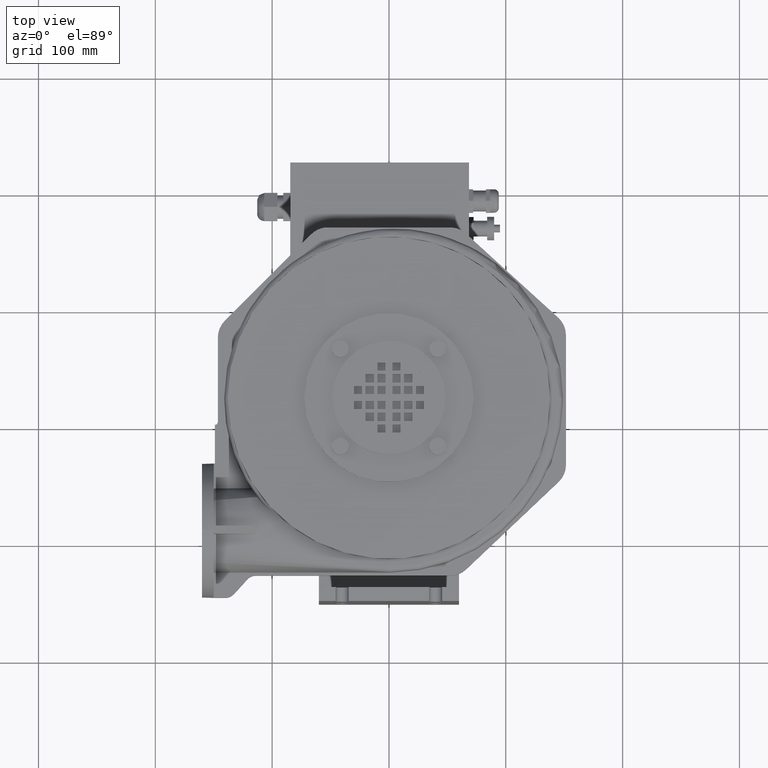
[diagram: clean part render]
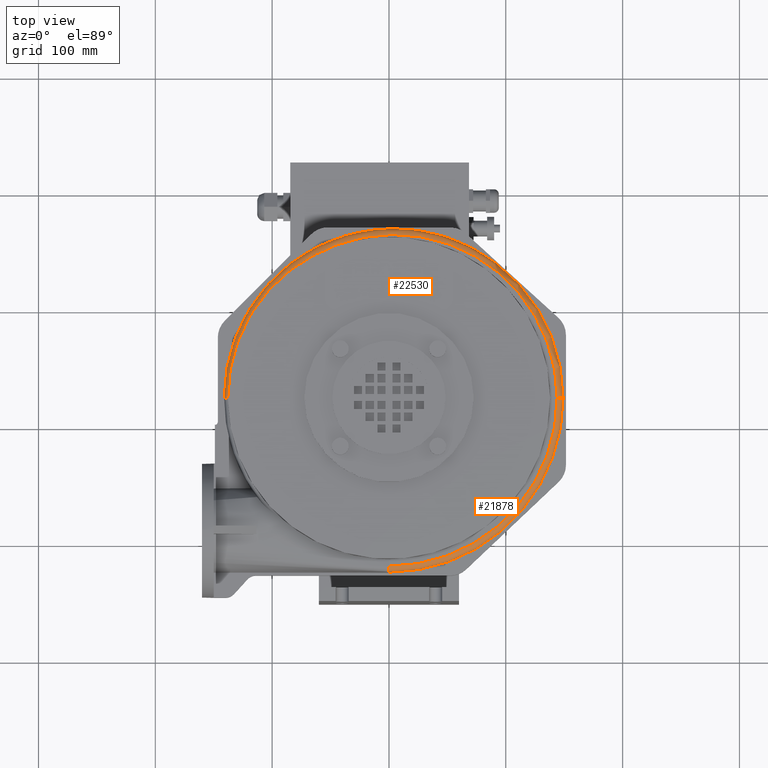
[diagram: same view with one multi-face feature highlighted, each face labeled with its STEP entity id]
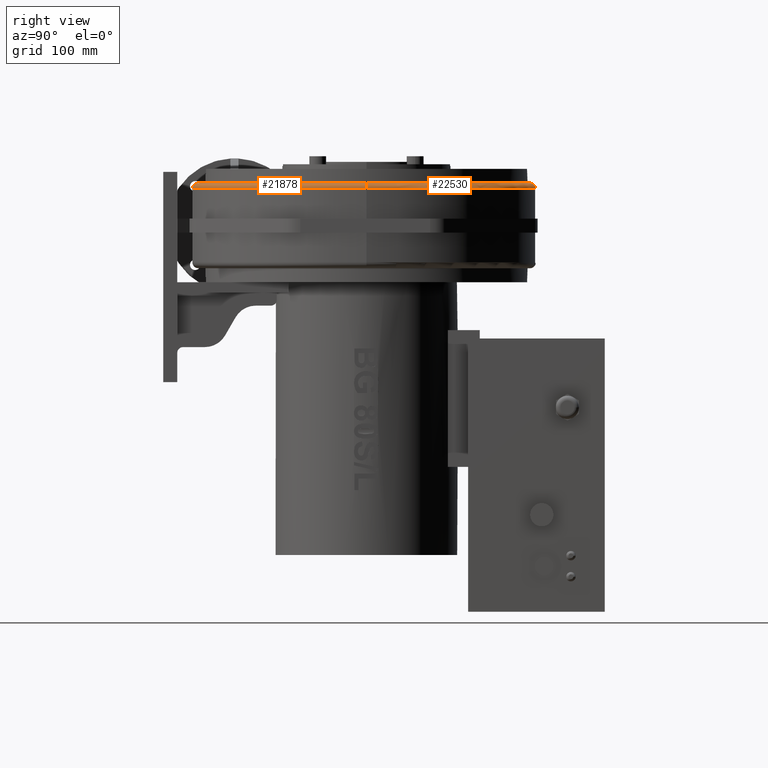
[diagram: same view with one multi-face feature highlighted, each face labeled with its STEP entity id]
A machine part, top view. The highlighted faces form ONE feature: a constant-radius fillet chain: 2 tangent blend faces with common blend radius 5 mm. The faces share edges in the B-rep.
A second angle (right view) of the same feature is appended — it is thin or edge-on in the first view.
Their STEP definitions:
[1] entity #21878 (Torus):
#21835=CARTESIAN_POINT('',(-6.065097E-015,120.50000000000006,75.5));
#21836=DIRECTION('',(1.224647E-016,1.513340E-030,-1.0));
#21837=DIRECTION('',(-1.0,0.0,0.0));
#21838=AXIS2_PLACEMENT_3D('',#21835,#21836,#21837);
#21839=TOROIDAL_SURFACE('',#21838,144.0,5.0);
#21840=CARTESIAN_POINT('',(-2.666143E-014,-23.499999999999943,80.5));
#21841=VERTEX_POINT('',#21840);
#21842=CARTESIAN_POINT('',(-2.674300E-014,-28.499999999999943,75.5));
#21843=VERTEX_POINT('',#21842);
#21844=CARTESIAN_POINT('',(-2.604911E-014,-23.499999999999943,75.5));
#21845=DIRECTION('',(1.0,0.0,0.0));
#21846=DIRECTION('',(0.0,-1.0,0.0));
#21847=AXIS2_PLACEMENT_3D('',#21844,#21845,#21846);
#21848=CIRCLE('',#21847,5.0);
#21849=EDGE_CURVE('',#21841,#21843,#21848,.T.);
#21850=ORIENTED_EDGE('',*,*,#21849,.T.);
#21851=CARTESIAN_POINT('',(149.0000000000002,120.50000000000004,75.500000000000014));
#21852=VERTEX_POINT('',#21851);
#21853=CARTESIAN_POINT('',(-6.065097E-015,120.50000000000006,75.5));
#21854=DIRECTION('',(-6.123234E-017,6.123234E-017,1.0));
#21855=DIRECTION('',(0.707106781186547,-0.707106781186548,8.659561E-017));
#21856=AXIS2_PLACEMENT_3D('',#21853,#21854,#21855);
#21857=CIRCLE('',#21856,149.0);
#21858=EDGE_CURVE('',#21843,#21852,#21857,.T.);
#21859=ORIENTED_EDGE('',*,*,#21858,.T.);
#21860=CARTESIAN_POINT('',(144.0,120.50000000000004,80.5));
#21861=VERTEX_POINT('',#21860);
#21862=CARTESIAN_POINT('',(144.0,120.50000000000004,75.500000000000014));
#21863=DIRECTION('',(0.0,-1.0,0.0));
#21864=DIRECTION('',(1.0,0.0,0.0));
#21865=AXIS2_PLACEMENT_3D('',#21862,#21863,#21864);
#21866=CIRCLE('',#21865,5.000000000000195);
#21867=EDGE_CURVE('',#21852,#21861,#21866,.T.);
#21868=ORIENTED_EDGE('',*,*,#21867,.T.);
#21869=CARTESIAN_POINT('',(-6.677420E-015,120.50000000000006,80.5));
#21870=DIRECTION('',(6.123234E-017,-6.123234E-017,-1.0));
#21871=DIRECTION('',(0.707106781186547,-0.707106781186548,8.659561E-017));
#21872=AXIS2_PLACEMENT_3D('',#21869,#21870,#21871);
#21873=CIRCLE('',#21872,144.0);
#21874=EDGE_CURVE('',#21861,#21841,#21873,.T.);
#21875=ORIENTED_EDGE('',*,*,#21874,.T.);
#21876=EDGE_LOOP('',(#21850,#21859,#21868,#21875));
#21877=FACE_OUTER_BOUND('',#21876,.T.);
#21878=ADVANCED_FACE('',(#21877),#21839,.T.);
[2] entity #22530 (Torus):
#21851=CARTESIAN_POINT('',(149.0000000000002,120.50000000000004,75.500000000000014));
#21852=VERTEX_POINT('',#21851);
#21860=CARTESIAN_POINT('',(144.0,120.50000000000004,80.5));
#21861=VERTEX_POINT('',#21860);
#21862=CARTESIAN_POINT('',(144.0,120.50000000000004,75.500000000000014));
#21863=DIRECTION('',(0.0,-1.0,0.0));
#21864=DIRECTION('',(1.0,0.0,0.0));
#21865=AXIS2_PLACEMENT_3D('',#21862,#21863,#21864);
#21866=CIRCLE('',#21865,5.000000000000195);
#21867=EDGE_CURVE('',#21852,#21861,#21866,.T.);
#22469=CARTESIAN_POINT('',(-67.499999999998892,240.86506968385868,80.500000000000043));
#22470=VERTEX_POINT('',#22469);
#22480=CARTESIAN_POINT('',(3.999999999999994,120.50000000000006,80.5));
#22481=DIRECTION('',(0.0,0.0,-1.0));
#22482=DIRECTION('',(0.0,1.0,0.0));
#22483=AXIS2_PLACEMENT_3D('',#22480,#22481,#22482);
#22484=CIRCLE('',#22483,139.99999999999997);
#22485=EDGE_CURVE('',#22470,#21861,#22484,.T.);
#22490=CARTESIAN_POINT('',(3.999999999999994,120.50000000000006,75.5));
#22491=DIRECTION('',(1.224647E-016,1.513340E-030,-1.0));
#22492=DIRECTION('',(-1.0,0.0,0.0));
#22493=AXIS2_PLACEMENT_3D('',#22490,#22491,#22492);
#22494=TOROIDAL_SURFACE('',#22493,139.99999999999997,5.0);
#22495=CARTESIAN_POINT('',(-138.0,120.50000000000009,80.082575694955764));
#22496=VERTEX_POINT('',#22495);
#22497=CARTESIAN_POINT('',(-138.0,120.50000000000011,80.082575694955821));
#22498=CARTESIAN_POINT('',(-138.0,127.46495789654686,80.082575694955821));
#22499=CARTESIAN_POINT('',(-137.47270814945554,134.42542455232183,80.08914172275432));
#22500=CARTESIAN_POINT('',(-134.23482126896053,155.63975805121871,80.127912349636716));
#22501=CARTESIAN_POINT('',(-129.8088169944705,169.52506122207006,80.180543624849633));
#22502=CARTESIAN_POINT('',(-115.21061057727798,198.57343560874028,80.31843416321378));
#22503=CARTESIAN_POINT('',(-104.03815201084164,212.93923277851997,80.406088520468231));
#22504=CARTESIAN_POINT('',(-83.329720445598724,230.90044110725941,80.483707548364123));
#22505=CARTESIAN_POINT('',(-75.647475635341877,236.29601483405796,80.499999999999986));
#22506=CARTESIAN_POINT('',(-67.499999999998892,240.86506968385874,80.499999999999986));
#22507=B_SPLINE_CURVE_WITH_KNOTS('',3,(#22497,#22498,#22499,#22500,#22501,#22502,#22503,#22504,#22505,#22506),.UNSPECIFIED.,.F.,.U.,(4,2,2,2,4),(-8.756753013427833,-8.229413649537134,-7.134491441095791,-5.771788730580052,-5.062242232892174),.UNSPECIFIED.);
#22508=EDGE_CURVE('',#22496,#22470,#22507,.T.);
#22509=ORIENTED_EDGE('',*,*,#22508,.T.);
#22510=ORIENTED_EDGE('',*,*,#22485,.T.);
#22511=ORIENTED_EDGE('',*,*,#21867,.F.);
#22512=CARTESIAN_POINT('',(-140.99999999999994,120.50000000000009,75.499999999999986));
#22513=VERTEX_POINT('',#22512);
#22514=CARTESIAN_POINT('',(3.999999999999994,120.50000000000006,75.5));
#22515=DIRECTION('',(0.0,0.0,1.0));
#22516=DIRECTION('',(0.0,1.0,0.0));
#22517=AXIS2_PLACEMENT_3D('',#22514,#22515,#22516);
#22518=CIRCLE('',#22517,144.99999999999997);
#22519=EDGE_CURVE('',#21852,#22513,#22518,.T.);
#22520=ORIENTED_EDGE('',*,*,#22519,.T.);
#22521=CARTESIAN_POINT('',(-135.99999999999997,120.50000000000006,75.499999999999986));
#22522=DIRECTION('',(0.0,1.0,0.0));
#22523=DIRECTION('',(-1.0,0.0,0.0));
#22524=AXIS2_PLACEMENT_3D('',#22521,#22522,#22523);
#22525=CIRCLE('',#22524,4.999999999999965);
#22526=EDGE_CURVE('',#22513,#22496,#22525,.T.);
#22527=ORIENTED_EDGE('',*,*,#22526,.T.);
#22528=EDGE_LOOP('',(#22509,#22510,#22511,#22520,#22527));
#22529=FACE_OUTER_BOUND('',#22528,.T.);
#22530=ADVANCED_FACE('',(#22529),#22494,.T.);